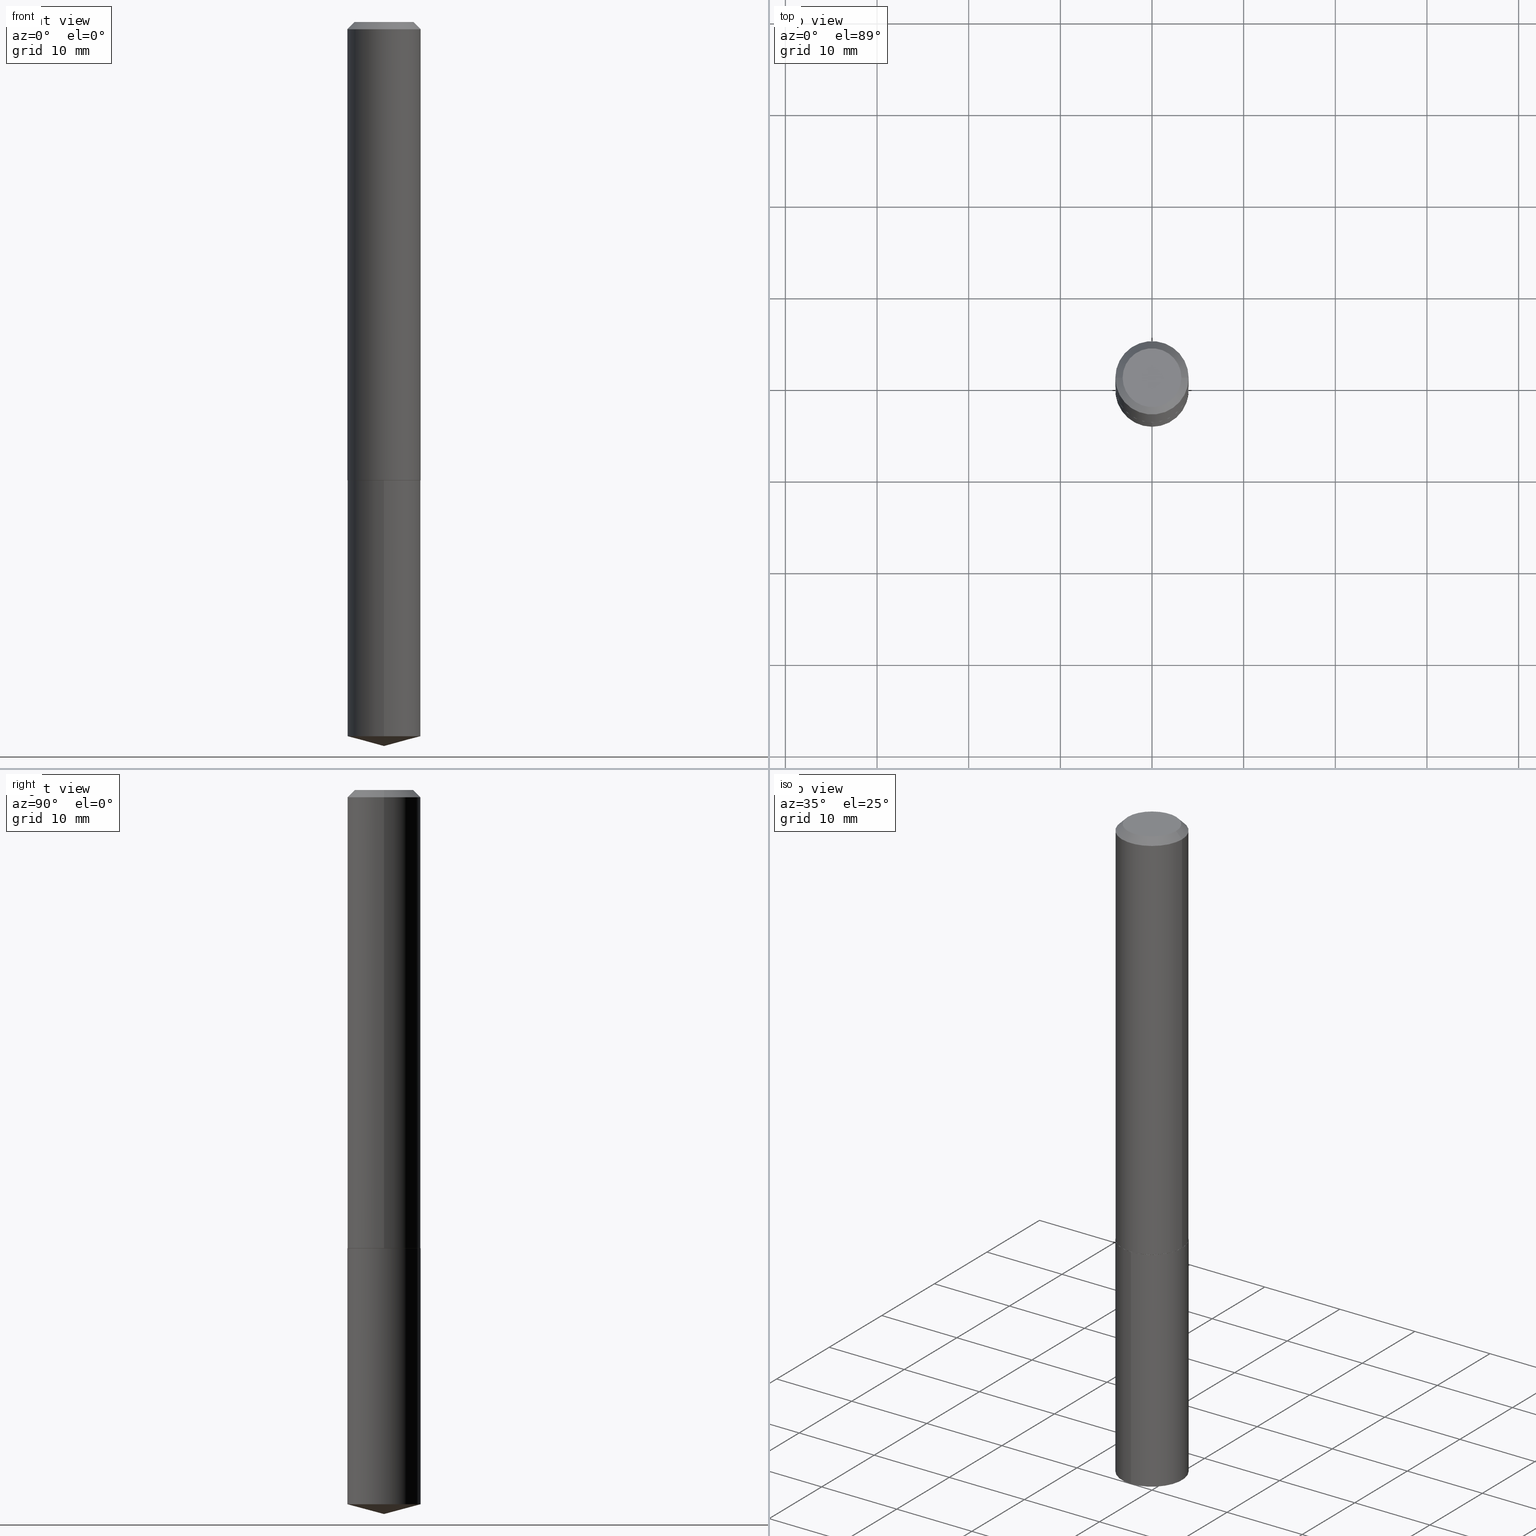
[diagram: canonical four-view strip — front | top / right | iso, engineering-drawing reading convention]
A machine part, canonical four-view strip (front | top / right | iso — engineering-drawing reading convention). The complete STEP part file that produces these views, byte-faithful:
ISO-10303-21;
HEADER;
FILE_DESCRIPTION (( 'STEP AP203' ),
    '1' );
FILE_NAME ('69015.STEP',
    '2024-04-23T14:20:31',
    ( '' ),
    ( '' ),
    'SwSTEP 2.0',
    'SolidWorks 2023',
    '' );
FILE_SCHEMA (( 'CONFIG_CONTROL_DESIGN' ));
ENDSEC;

DATA;
#1 = DIRECTION ( 'NONE',  ( -2.438088387897960049E-29, 3.491481338843145188E-15, 1.000000000000000000 ) ) ;
#2 = DIRECTION ( 'NONE',  ( -2.445414923348069265E-29, 3.491558502132646561E-15, 1.000000000000000000 ) ) ;
#3 = AXIS2_PLACEMENT_3D ( 'NONE', #268, #240, #80 ) ;
#4 =( GEOMETRIC_REPRESENTATION_CONTEXT ( 3 ) GLOBAL_UNCERTAINTY_ASSIGNED_CONTEXT ( ( #249 ) ) GLOBAL_UNIT_ASSIGNED_CONTEXT ( ( #203, #369, #107 ) ) REPRESENTATION_CONTEXT ( 'NONE', 'WORKASPACE' ) );
#5 = PRODUCT_DEFINITION_FORMATION_WITH_SPECIFIED_SOURCE ( 'ANY', '', #269, .NOT_KNOWN. ) ;
#6 = ORIENTED_EDGE ( 'NONE', *, *, #106, .T. ) ;
#7 = LINE ( 'NONE', #346, #135 ) ;
#8 = PERSON ( 'UNSPECIFIED', 'UNSPECIFIED', 'UNSPECIFIED', ('UNSPECIFIED'), ('UNSPECIFIED'), ('UNSPECIFIED') ) ;
#9 = EDGE_LOOP ( 'NONE', ( #175, #294, #291 ) ) ;
#10 = ADVANCED_FACE ( 'NONE', ( #270 ), #227, .T. ) ;
#11 = VECTOR ( 'NONE', #104, 39.37007874015748143 ) ;
#12 = CYLINDRICAL_SURFACE ( 'NONE', #3, 0.1575000000000000844 ) ;
#13 = DIRECTION ( 'NONE',  ( -2.445414923348069265E-29, 3.491558502132646561E-15, 1.000000000000000000 ) ) ;
#14 = ADVANCED_FACE ( 'NONE', ( #87 ), #12, .T. ) ;
#15 = DATE_AND_TIME ( #278, #150 ) ;
#16 = CARTESIAN_POINT ( 'NONE',  ( -0.1575000000000002232, -5.752130466021151811E-15, -1.968000000000000194 ) ) ;
#17 = EDGE_LOOP ( 'NONE', ( #97, #226, #23, #141 ) ) ;
#18 = AXIS2_PLACEMENT_3D ( 'NONE', #255, #65, #151 ) ;
#19 = PERSON_AND_ORGANIZATION_ROLE ( 'design_owner' ) ;
#20 = DIRECTION ( 'NONE',  ( 1.000000000000000000, -6.982962677686265133E-15, 0.000000000000000000 ) ) ;
#21 = PERSON_AND_ORGANIZATION ( #8, #116 ) ;
#22 = DIRECTION ( 'NONE',  ( -6.982962677686264344E-15, -1.000000000000000000, 3.469013325287953293E-15 ) ) ;
#23 = ORIENTED_EDGE ( 'NONE', *, *, #229, .T. ) ;
#24 = DATE_AND_TIME ( #176, #46 ) ;
#25 = CARTESIAN_POINT ( 'NONE',  ( 4.812682610572349594E-29, -6.871235274843310993E-15, -1.968000000000000194 ) ) ;
#26 = ORIENTED_EDGE ( 'NONE', *, *, #340, .T. ) ;
#27 = CIRCLE ( 'NONE', #342, 0.1575000000000000011 ) ;
#28 = AXIS2_PLACEMENT_3D ( 'NONE', #57, #177, #138 ) ;
#29 = DIRECTION ( 'NONE',  ( -2.445468806185136597E-29, 3.491481338843145583E-15, 1.000000000000000000 ) ) ;
#30 = ORIENTED_EDGE ( 'NONE', *, *, #271, .T. ) ;
#31 = LOCAL_TIME ( 10, 20, 31.00000000000000000, #212 ) ;
#32 = DIRECTION ( 'NONE',  ( -2.445468806185136597E-29, 3.491481338843145583E-15, 1.000000000000000000 ) ) ;
#33 = DESIGN_CONTEXT ( 'detailed design', #169, 'design' ) ;
#34 = EDGE_CURVE ( 'NONE', #49, #283, #7, .T. ) ;
#35 = EDGE_LOOP ( 'NONE', ( #313, #30, #68, #170 ) ) ;
#36 = CARTESIAN_POINT ( 'NONE',  ( 4.812682610572349594E-29, -6.871235274843310993E-15, -1.968000000000000194 ) ) ;
#37 = AXIS2_PLACEMENT_3D ( 'NONE', #205, #13, #351 ) ;
#38 = VECTOR ( 'NONE', #67, 39.37007874015748854 ) ;
#39 = EDGE_LOOP ( 'NONE', ( #275, #167, #42, #162 ) ) ;
#40 = EDGE_LOOP ( 'NONE', ( #111, #130 ) ) ;
#41 = EDGE_CURVE ( 'NONE', #174, #339, #202, .T. ) ;
#42 = ORIENTED_EDGE ( 'NONE', *, *, #178, .T. ) ;
#43 = ORIENTED_EDGE ( 'NONE', *, *, #112, .T. ) ;
#44 = VECTOR ( 'NONE', #389, 39.37007874015748854 ) ;
#45 = DIRECTION ( 'NONE',  ( -2.445414923348069265E-29, 3.491558502132646561E-15, 1.000000000000000000 ) ) ;
#46 = LOCAL_TIME ( 10, 20, 31.00000000000000000, #382 ) ;
#47 = DIRECTION ( 'NONE',  ( -2.445414923348069265E-29, 3.491558502132646561E-15, 1.000000000000000000 ) ) ;
#48 = EDGE_CURVE ( 'NONE', #260, #372, #367, .T. ) ;
#49 = VERTEX_POINT ( 'NONE', #320 ) ;
#50 = VERTEX_POINT ( 'NONE', #376 ) ;
#51 = DIRECTION ( 'NONE',  ( -6.982962677686264344E-15, -1.000000000000000000, 3.469013325287953293E-15 ) ) ;
#52 = AXIS2_PLACEMENT_3D ( 'NONE', #62, #245, #123 ) ;
#53 = DIRECTION ( 'NONE',  ( 2.445468806185136597E-29, -3.491481338843145583E-15, -1.000000000000000000 ) ) ;
#54 = CC_DESIGN_APPROVAL ( #290, ( #388 ) ) ;
#55 = EDGE_CURVE ( 'NONE', #362, #174, #27, .T. ) ;
#56 = PERSON_AND_ORGANIZATION_ROLE ( 'classification_officer' ) ;
#57 = CARTESIAN_POINT ( 'NONE',  ( 4.813905344975441835E-29, -6.872981015512731707E-15, -1.968500000000000139 ) ) ;
#58 = PERSON_AND_ORGANIZATION ( #8, #116 ) ;
#59 = CARTESIAN_POINT ( 'NONE',  ( 4.813905344975441835E-29, -6.872981015512731707E-15, -1.968500000000000139 ) ) ;
#60 = CLOSED_SHELL ( 'NONE', ( #237, #14, #336, #314, #121, #280, #93, #76 ) ) ;
#61 = AXIS2_PLACEMENT_3D ( 'NONE', #59, #1, #197 ) ;
#62 = CARTESIAN_POINT ( 'NONE',  ( 0.000000000000000000, 0.000000000000000000, 0.000000000000000000 ) ) ;
#63 = LINE ( 'NONE', #361, #243 ) ;
#64 = DATE_AND_TIME ( #119, #254 ) ;
#65 = DIRECTION ( 'NONE',  ( -2.445468806185136597E-29, 3.491481338843145583E-15, 1.000000000000000000 ) ) ;
#66 = PERSON_AND_ORGANIZATION ( #8, #116 ) ;
#67 = DIRECTION ( 'NONE',  ( 6.863315791527704515E-15, 0.9659258262890710878, 0.2588190451025098038 ) ) ;
#68 = ORIENTED_EDGE ( 'NONE', *, *, #48, .T. ) ;
#69 = CIRCLE ( 'NONE', #199, 0.1575000000000000011 ) ;
#70 = AXIS2_PLACEMENT_3D ( 'NONE', #385, #185, #305 ) ;
#71 = DIRECTION ( 'NONE',  ( 1.000000000000000000, -6.982962677686267499E-15, 4.876176775795936353E-29 ) ) ;
#72 = CC_DESIGN_SECURITY_CLASSIFICATION ( #100, ( #5 ) ) ;
#73 = APPROVAL ( #214, 'UNSPECIFIED' ) ;
#74 = EDGE_LOOP ( 'NONE', ( #247, #365, #103, #192 ) ) ;
#75 = ORIENTED_EDGE ( 'NONE', *, *, #145, .F. ) ;
#76 = ADVANCED_FACE ( 'NONE', ( #241 ), #85, .F. ) ;
#77 = DIRECTION ( 'NONE',  ( 1.000000000000000000, -6.982962677686265133E-15, 0.000000000000000000 ) ) ;
#78 = CONICAL_SURFACE ( 'NONE', #328, 0.1575000000000000011, 0.7853981633974449483 ) ;
#79 = EDGE_CURVE ( 'NONE', #283, #286, #349, .T. ) ;
#80 = DIRECTION ( 'NONE',  ( 1.000000000000000000, -6.982962677686267499E-15, 4.876176775795936353E-29 ) ) ;
#81 = ORIENTED_EDGE ( 'NONE', *, *, #106, .F. ) ;
#82 = DIRECTION ( 'NONE',  ( -6.982962677686264344E-15, -1.000000000000000000, 3.469013325287953293E-15 ) ) ;
#83 = CARTESIAN_POINT ( 'NONE',  ( -1.099816621735538768E-15, -0.1575000000000068567, -1.968499999999999472 ) ) ;
#84 = DIRECTION ( 'NONE',  ( 1.000000000000000000, -6.982962677686265133E-15, 0.000000000000000000 ) ) ;
#85 = PLANE ( 'NONE',  #306 ) ;
#86 = CC_DESIGN_DATE_AND_TIME_ASSIGNMENT ( #24, #217, ( #388 ) ) ;
#87 = FACE_OUTER_BOUND ( 'NONE', #285, .T. ) ;
#88 = APPROVAL_STATUS ( 'not_yet_approved' ) ;
#89 = CARTESIAN_POINT ( 'NONE',  ( 7.605943491515408972E-29, -1.085914146146219364E-14, -3.110199999999999854 ) ) ;
#90 = ORIENTED_EDGE ( 'NONE', *, *, #340, .F. ) ;
#91 = PERSON_AND_ORGANIZATION ( #8, #116 ) ;
#92 = DIRECTION ( 'NONE',  ( 0.7071067811865451302, -7.319954787623248157E-15, -0.7071067811865499042 ) ) ;
#93 = ADVANCED_FACE ( 'NONE', ( #207 ), #78, .T. ) ;
#94 = LINE ( 'NONE', #386, #234 ) ;
#95 = APPROVAL_ROLE ( '' ) ;
#96 = DIRECTION ( 'NONE',  ( 2.445468806185136597E-29, -3.491481338843145583E-15, -1.000000000000000000 ) ) ;
#97 = ORIENTED_EDGE ( 'NONE', *, *, #34, .F. ) ;
#98 = CARTESIAN_POINT ( 'NONE',  ( 0.1575000000000000011, -1.189637226487865274E-15, -0.03125000000000021511 ) ) ;
#99 = VECTOR ( 'NONE', #92, 39.37007874015748143 ) ;
#100 = SECURITY_CLASSIFICATION ( '', '', #257 ) ;
#101 = EDGE_LOOP ( 'NONE', ( #195, #390, #26, #308 ) ) ;
#102 = EDGE_CURVE ( 'NONE', #144, #339, #69, .T. ) ;
#103 = ORIENTED_EDGE ( 'NONE', *, *, #41, .T. ) ;
#104 = DIRECTION ( 'NONE',  ( -2.445414923348069265E-29, 3.491558502132646561E-15, 1.000000000000000000 ) ) ;
#105 = ORIENTED_EDGE ( 'NONE', *, *, #204, .F. ) ;
#106 = EDGE_CURVE ( 'NONE', #134, #49, #132, .T. ) ;
#107 =( NAMED_UNIT ( * ) SI_UNIT ( $, .STERADIAN. ) SOLID_ANGLE_UNIT ( ) );
#108 = CARTESIAN_POINT ( 'NONE',  ( 7.642090019328604414E-31, -1.091087918388490513E-16, -0.03125000000000021511 ) ) ;
#109 = AXIS2_PLACEMENT_3D ( 'NONE', #284, #2, #194 ) ;
#110 = VERTEX_POINT ( 'NONE', #323 ) ;
#111 = ORIENTED_EDGE ( 'NONE', *, *, #266, .T. ) ;
#112 = EDGE_CURVE ( 'NONE', #339, #144, #222, .T. ) ;
#113 =( LENGTH_UNIT ( ) NAMED_UNIT ( * ) SI_UNIT ( $, .METRE. ) );
#114 = DIRECTION ( 'NONE',  ( -1.000000000000000000, 6.982962677686265922E-15, -4.876176775795935793E-29 ) ) ;
#115 = DIRECTION ( 'NONE',  ( -2.445414923348069265E-29, 3.491558502132646561E-15, 1.000000000000000000 ) ) ;
#116 = ORGANIZATION ( 'UNSPECIFIED', 'UNSPECIFIED', '' ) ;
#117 = APPROVAL_DATE_TIME ( #15, #73 ) ;
#118 = DIRECTION ( 'NONE',  ( -2.445468806185136597E-29, 3.491481338843145583E-15, 1.000000000000000000 ) ) ;
#119 = CALENDAR_DATE ( 2024, 23, 4 ) ;
#120 = DIRECTION ( 'NONE',  ( -2.445414923348069265E-29, 3.491558502132646561E-15, 1.000000000000000000 ) ) ;
#121 = ADVANCED_FACE ( 'NONE', ( #264 ), #371, .T. ) ;
#122 = MANIFOLD_SOLID_BREP ( 'Body-Move/Copy2[2]', #60 ) ;
#123 = DIRECTION ( 'NONE',  ( 1.000000000000000000, 0.000000000000000000, 0.000000000000000000 ) ) ;
#124 = CARTESIAN_POINT ( 'NONE',  ( 1.119104808822232742E-15, 0.1574999999999931177, -1.968500000000000583 ) ) ;
#125 = COORDINATED_UNIVERSAL_TIME_OFFSET ( 5, 0, .BEHIND. ) ;
#126 = CARTESIAN_POINT ( 'NONE',  ( 7.605729494597165206E-29, -1.085944525333295729E-14, -3.110199999999999854 ) ) ;
#127 = ORIENTED_EDGE ( 'NONE', *, *, #380, .F. ) ;
#128 = ADVANCED_FACE ( 'NONE', ( #317 ), #180, .F. ) ;
#129 = DIRECTION ( 'NONE',  ( -2.445468806185136597E-29, 3.491481338843145583E-15, 1.000000000000000000 ) ) ;
#130 = ORIENTED_EDGE ( 'NONE', *, *, #302, .T. ) ;
#131 = CLOSED_SHELL ( 'NONE', ( #198, #326, #10, #211, #128 ) ) ;
#132 = CIRCLE ( 'NONE', #377, 0.1570000000000002782 ) ;
#133 = PRODUCT_RELATED_PRODUCT_CATEGORY ( 'detail', '', ( #269 ) ) ;
#134 = VERTEX_POINT ( 'NONE', #190 ) ;
#135 = VECTOR ( 'NONE', #348, 39.37007874015748143 ) ;
#136 = VECTOR ( 'NONE', #201, 39.37007874015748143 ) ;
#137 = CC_DESIGN_PERSON_AND_ORGANIZATION_ASSIGNMENT ( #154, #329, ( #5 ) ) ;
#138 = DIRECTION ( 'NONE',  ( -6.982962677686264344E-15, -1.000000000000000000, 3.469013325287953293E-15 ) ) ;
#139 = CARTESIAN_POINT ( 'NONE',  ( 1.119104808822232742E-15, 0.1574999999999893430, -3.067998002192100060 ) ) ;
#140 = DIRECTION ( 'NONE',  ( -2.445414923348069265E-29, 3.491558502132646561E-15, 1.000000000000000000 ) ) ;
#141 = ORIENTED_EDGE ( 'NONE', *, *, #79, .F. ) ;
#142 = CIRCLE ( 'NONE', #228, 0.1575000000000000011 ) ;
#143 = CARTESIAN_POINT ( 'NONE',  ( -2.994835545909349753E-48, 4.275831445897006817E-34, 1.224646799147362773E-19 ) ) ;
#144 = VERTEX_POINT ( 'NONE', #124 ) ;
#145 = EDGE_CURVE ( 'NONE', #110, #174, #332, .T. ) ;
#146 = CARTESIAN_POINT ( 'NONE',  ( 4.812682610572349594E-29, -6.871235274843310993E-15, -1.968000000000000194 ) ) ;
#147 = DIRECTION ( 'NONE',  ( 1.000000000000000000, -6.982962677686267499E-15, 4.876173807581833048E-29 ) ) ;
#148 = ORIENTED_EDGE ( 'NONE', *, *, #380, .T. ) ;
#149 = DATE_AND_TIME ( #248, #31 ) ;
#150 = LOCAL_TIME ( 10, 20, 31.00000000000000000, #125 ) ;
#151 = DIRECTION ( 'NONE',  ( 1.000000000000000000, -6.982962677686264344E-15, 0.000000000000000000 ) ) ;
#152 = DATE_AND_TIME ( #378, #168 ) ;
#153 = CARTESIAN_POINT ( 'NONE',  ( 0.1575000000000000011, -1.208925413574435989E-15, -0.03125000000000021511 ) ) ;
#154 = PERSON_AND_ORGANIZATION ( #8, #116 ) ;
#155 = CARTESIAN_POINT ( 'NONE',  ( 4.813905344975441835E-29, -6.872981015512731707E-15, -1.968500000000000139 ) ) ;
#156 = VECTOR ( 'NONE', #47, 39.37007874015748143 ) ;
#157 = CC_DESIGN_PERSON_AND_ORGANIZATION_ASSIGNMENT ( #186, #56, ( #100 ) ) ;
#158 = CONICAL_SURFACE ( 'NONE', #267, 0.1575000000000000011, 0.7853981633974449483 ) ;
#159 = DIRECTION ( 'NONE',  ( 0.7071067811865957564, -2.468850131082761932E-15, 0.7071067811864992780 ) ) ;
#160 = ORIENTED_EDGE ( 'NONE', *, *, #34, .T. ) ;
#161 = AXIS2_PLACEMENT_3D ( 'NONE', #155, #120, #22 ) ;
#162 = ORIENTED_EDGE ( 'NONE', *, *, #360, .T. ) ;
#163 = EDGE_CURVE ( 'NONE', #110, #362, #218, .T. ) ;
#164 = VERTEX_POINT ( 'NONE', #304 ) ;
#165 = DIRECTION ( 'NONE',  ( 1.000000000000000000, -6.982962677686265922E-15, 0.000000000000000000 ) ) ;
#166 = APPROVAL_PERSON_ORGANIZATION ( #357, #290, #95 ) ;
#167 = ORIENTED_EDGE ( 'NONE', *, *, #266, .F. ) ;
#168 = LOCAL_TIME ( 10, 20, 31.00000000000000000, #179 ) ;
#169 = APPLICATION_CONTEXT ( 'configuration controlled 3d designs of mechanical parts and assemblies' ) ;
#170 = ORIENTED_EDGE ( 'NONE', *, *, #178, .F. ) ;
#171 = ORIENTED_EDGE ( 'NONE', *, *, #163, .T. ) ;
#172 = EDGE_LOOP ( 'NONE', ( #43, #289 ) ) ;
#173 = AXIS2_PLACEMENT_3D ( 'NONE', #36, #32, #84 ) ;
#174 = VERTEX_POINT ( 'NONE', #281 ) ;
#175 = ORIENTED_EDGE ( 'NONE', *, *, #163, .F. ) ;
#176 = CALENDAR_DATE ( 2024, 23, 4 ) ;
#177 = DIRECTION ( 'NONE',  ( -2.445414923348069265E-29, 3.491558502132646561E-15, 1.000000000000000000 ) ) ;
#178 = EDGE_CURVE ( 'NONE', #50, #372, #63, .T. ) ;
#179 = COORDINATED_UNIVERSAL_TIME_OFFSET ( 5, 0, .BEHIND. ) ;
#180 = PLANE ( 'NONE',  #70 ) ;
#181 = CIRCLE ( 'NONE', #259, 0.1575000000000002232 ) ;
#182 = ADVANCED_BREP_SHAPE_REPRESENTATION ( '69015', ( #262, #122, #52 ), #4 ) ;
#183 = CYLINDRICAL_SURFACE ( 'NONE', #216, 0.1575000000000000011 ) ;
#184 = APPROVAL_ROLE ( '' ) ;
#185 = DIRECTION ( 'NONE',  ( 2.445414923348068985E-29, -3.491558502132646561E-15, -1.000000000000000000 ) ) ;
#186 = PERSON_AND_ORGANIZATION ( #8, #116 ) ;
#187 = DIRECTION ( 'NONE',  ( -2.445414923348069265E-29, 3.491558502132646561E-15, 1.000000000000000000 ) ) ;
#188 = AXIS2_PLACEMENT_3D ( 'NONE', #146, #265, #322 ) ;
#189 = CONICAL_SURFACE ( 'NONE', #109, 146.9311341562595885, 1.308996938995754977 ) ;
#190 = CARTESIAN_POINT ( 'NONE',  ( 0.1570000000000002782, -7.969306155909476969E-15, -1.968500000000000139 ) ) ;
#191 = APPLICATION_CONTEXT ( 'configuration controlled 3d designs of mechanical parts and assemblies' ) ;
#192 = ORIENTED_EDGE ( 'NONE', *, *, #102, .F. ) ;
#193 = EDGE_CURVE ( 'NONE', #286, #283, #181, .T. ) ;
#194 = DIRECTION ( 'NONE',  ( -6.982962677686265922E-15, -1.000000000000000000, 3.510303681827531176E-15 ) ) ;
#195 = ORIENTED_EDGE ( 'NONE', *, *, #253, .F. ) ;
#196 = AXIS2_PLACEMENT_3D ( 'NONE', #215, #221, #71 ) ;
#197 = DIRECTION ( 'NONE',  ( 1.000000000000000000, -6.982962677686265922E-15, 4.876176775795935793E-29 ) ) ;
#198 = ADVANCED_FACE ( 'NONE', ( #325 ), #383, .T. ) ;
#199 = AXIS2_PLACEMENT_3D ( 'NONE', #344, #115, #315 ) ;
#200 = CARTESIAN_POINT ( 'NONE',  ( 7.502634167727390429E-29, -1.071194261314441830E-14, -3.067998002192099616 ) ) ;
#201 = DIRECTION ( 'NONE',  ( -2.445468806185136877E-29, 3.491481338843145188E-15, 1.000000000000000000 ) ) ;
#202 = LINE ( 'NONE', #83, #156 ) ;
#203 =( CONVERSION_BASED_UNIT ( 'INCH', #316 ) LENGTH_UNIT ( ) NAMED_UNIT ( #252 ) );
#204 = EDGE_CURVE ( 'NONE', #49, #134, #261, .T. ) ;
#205 = CARTESIAN_POINT ( 'NONE',  ( -8.867034252160772409E-28, 1.266036397974310327E-13, 36.25987874015748247 ) ) ;
#206 = AXIS2_PLACEMENT_3D ( 'NONE', #108, #272, #296 ) ;
#207 = FACE_OUTER_BOUND ( 'NONE', #39, .T. ) ;
#208 = CC_DESIGN_APPROVAL ( #309, ( #5 ) ) ;
#209 = APPLICATION_PROTOCOL_DEFINITION ( 'international standard', 'config_control_design', 1994, #169 ) ;
#210 = DIRECTION ( 'NONE',  ( 1.000000000000000000, -6.982962677686264344E-15, 0.000000000000000000 ) ) ;
#211 = ADVANCED_FACE ( 'NONE', ( #299 ), #183, .T. ) ;
#212 = COORDINATED_UNIVERSAL_TIME_OFFSET ( 5, 0, .BEHIND. ) ;
#213 = PLANE ( 'NONE',  #61 ) ;
#214 = APPROVAL_STATUS ( 'not_yet_approved' ) ;
#215 = CARTESIAN_POINT ( 'NONE',  ( 0.000000000000000000, 0.000000000000000000, 0.000000000000000000 ) ) ;
#216 = AXIS2_PLACEMENT_3D ( 'NONE', #258, #187, #277 ) ;
#217 = DATE_TIME_ROLE ( 'creation_date' ) ;
#218 = LINE ( 'NONE', #89, #38 ) ;
#219 = APPROVAL_DATE_TIME ( #64, #290 ) ;
#220 = CYLINDRICAL_SURFACE ( 'NONE', #196, 0.1575000000000000844 ) ;
#221 = DIRECTION ( 'NONE',  ( -2.445468806185136597E-29, 3.491481338843145583E-15, 1.000000000000000000 ) ) ;
#222 = CIRCLE ( 'NONE', #28, 0.1575000000000000011 ) ;
#223 = CC_DESIGN_DATE_AND_TIME_ASSIGNMENT ( #149, #355, ( #100 ) ) ;
#224 = EDGE_LOOP ( 'NONE', ( #6, #160, #381, #256 ) ) ;
#225 = EDGE_LOOP ( 'NONE', ( #148, #334, #335, #232 ) ) ;
#226 = ORIENTED_EDGE ( 'NONE', *, *, #204, .T. ) ;
#227 = CONICAL_SURFACE ( 'NONE', #37, 146.9311341562595885, 1.308996938995754977 ) ;
#228 = AXIS2_PLACEMENT_3D ( 'NONE', #293, #45, #82 ) ;
#229 = EDGE_CURVE ( 'NONE', #134, #286, #251, .T. ) ;
#230 = EDGE_LOOP ( 'NONE', ( #81, #105 ) ) ;
#231 = CARTESIAN_POINT ( 'NONE',  ( -0.1575000000000000011, -2.371067224518920865E-15, -0.03125000000000021511 ) ) ;
#232 = ORIENTED_EDGE ( 'NONE', *, *, #41, .F. ) ;
#233 = CARTESIAN_POINT ( 'NONE',  ( 7.642090019328604414E-31, -1.091087918388490513E-16, -0.03125000000000021511 ) ) ;
#234 = VECTOR ( 'NONE', #358, 39.37007874015748143 ) ;
#235 = CARTESIAN_POINT ( 'NONE',  ( 7.642090019328604414E-31, -1.091087918388490513E-16, -0.03125000000000021511 ) ) ;
#236 = APPROVAL_PERSON_ORGANIZATION ( #91, #73, #184 ) ;
#237 = ADVANCED_FACE ( 'NONE', ( #250 ), #158, .T. ) ;
#238 = CARTESIAN_POINT ( 'NONE',  ( -1.099816621735538768E-15, -0.1575000000000068567, -1.968499999999999472 ) ) ;
#239 = PRODUCT_DEFINITION_SHAPE ( 'NONE', 'NONE',  #388 ) ;
#240 = DIRECTION ( 'NONE',  ( -2.445468806185136597E-29, 3.491481338843145583E-15, 1.000000000000000000 ) ) ;
#241 = FACE_OUTER_BOUND ( 'NONE', #40, .T. ) ;
#242 = DIRECTION ( 'NONE',  ( -2.445468806185136597E-29, 3.491481338843145583E-15, 1.000000000000000000 ) ) ;
#243 = VECTOR ( 'NONE', #333, 39.37007874015748143 ) ;
#244 = CC_DESIGN_APPROVAL ( #73, ( #100 ) ) ;
#245 = DIRECTION ( 'NONE',  ( 0.000000000000000000, 0.000000000000000000, 1.000000000000000000 ) ) ;
#246 = DIRECTION ( 'NONE',  ( 1.000000000000000000, -6.982962677686267499E-15, 4.876173807581833048E-29 ) ) ;
#247 = ORIENTED_EDGE ( 'NONE', *, *, #366, .F. ) ;
#248 = CALENDAR_DATE ( 2024, 23, 4 ) ;
#249 = UNCERTAINTY_MEASURE_WITH_UNIT (LENGTH_MEASURE( 1.000000000000000082E-05 ), #203, 'distance_accuracy_value', 'NONE');
#250 = FACE_OUTER_BOUND ( 'NONE', #35, .T. ) ;
#251 = LINE ( 'NONE', #301, #321 ) ;
#252 = DIMENSIONAL_EXPONENTS ( 1.000000000000000000, 0.000000000000000000, 0.000000000000000000, 0.000000000000000000, 0.000000000000000000, 0.000000000000000000, 0.000000000000000000 ) ;
#253 = EDGE_CURVE ( 'NONE', #283, #372, #94, .T. ) ;
#254 = LOCAL_TIME ( 10, 20, 31.00000000000000000, #327 ) ;
#255 = CARTESIAN_POINT ( 'NONE',  ( 4.813905344975441835E-29, -6.872981015512731707E-15, -1.968500000000000139 ) ) ;
#256 = ORIENTED_EDGE ( 'NONE', *, *, #229, .F. ) ;
#257 = SECURITY_CLASSIFICATION_LEVEL ( 'unclassified' ) ;
#258 = CARTESIAN_POINT ( 'NONE',  ( 4.813905344975441835E-29, -6.872981015512731707E-15, -1.968500000000000139 ) ) ;
#259 = AXIS2_PLACEMENT_3D ( 'NONE', #25, #29, #20 ) ;
#260 = VERTEX_POINT ( 'NONE', #153 ) ;
#261 = CIRCLE ( 'NONE', #18, 0.1570000000000002782 ) ;
#262 = MANIFOLD_SOLID_BREP ( 'Body-Move/Copy2[1]', #131 ) ;
#263 = CARTESIAN_POINT ( 'NONE',  ( 1.119104808822205527E-15, 0.1574999999999931177, -1.968500000000000583 ) ) ;
#264 = FACE_OUTER_BOUND ( 'NONE', #17, .T. ) ;
#265 = DIRECTION ( 'NONE',  ( -2.445468806185136597E-29, 3.491481338843145583E-15, 1.000000000000000000 ) ) ;
#266 = EDGE_CURVE ( 'NONE', #50, #164, #338, .T. ) ;
#267 = AXIS2_PLACEMENT_3D ( 'NONE', #282, #96, #356 ) ;
#268 = CARTESIAN_POINT ( 'NONE',  ( 0.000000000000000000, 0.000000000000000000, 0.000000000000000000 ) ) ;
#269 = PRODUCT ( '69015', '69015', '', ( #324 ) ) ;
#270 = FACE_OUTER_BOUND ( 'NONE', #9, .T. ) ;
#271 = EDGE_CURVE ( 'NONE', #164, #260, #363, .T. ) ;
#272 = DIRECTION ( 'NONE',  ( -2.445468806185136597E-29, 3.491481338843145583E-15, 1.000000000000000000 ) ) ;
#273 = CARTESIAN_POINT ( 'NONE',  ( 0.1575000000000002232, -7.971051896578899262E-15, -1.968000000000000194 ) ) ;
#274 = AXIS2_PLACEMENT_3D ( 'NONE', #279, #129, #147 ) ;
#275 = ORIENTED_EDGE ( 'NONE', *, *, #271, .F. ) ;
#276 = PERSON_AND_ORGANIZATION_ROLE ( 'creator' ) ;
#277 = DIRECTION ( 'NONE',  ( -6.982962677686264344E-15, -1.000000000000000000, 3.469013325287953293E-15 ) ) ;
#278 = CALENDAR_DATE ( 2024, 23, 4 ) ;
#279 = CARTESIAN_POINT ( 'NONE',  ( -5.989671091818699506E-48, 8.551662891794013634E-34, 2.449293598294725547E-19 ) ) ;
#280 = ADVANCED_FACE ( 'NONE', ( #330 ), #220, .T. ) ;
#281 = CARTESIAN_POINT ( 'NONE',  ( -1.099816621735512341E-15, -0.1575000000000107425, -3.067998002192099172 ) ) ;
#282 = CARTESIAN_POINT ( 'NONE',  ( 7.642090019328604414E-31, -1.091087918388490513E-16, -0.03125000000000021511 ) ) ;
#283 = VERTEX_POINT ( 'NONE', #16 ) ;
#284 = CARTESIAN_POINT ( 'NONE',  ( -8.867034252160772409E-28, 1.266036397974310327E-13, 36.25987874015748247 ) ) ;
#285 = EDGE_LOOP ( 'NONE', ( #347, #287, #292, #90 ) ) ;
#286 = VERTEX_POINT ( 'NONE', #273 ) ;
#287 = ORIENTED_EDGE ( 'NONE', *, *, #253, .T. ) ;
#288 = LINE ( 'NONE', #263, #11 ) ;
#289 = ORIENTED_EDGE ( 'NONE', *, *, #102, .T. ) ;
#290 = APPROVAL ( #303, 'UNSPECIFIED' ) ;
#291 = ORIENTED_EDGE ( 'NONE', *, *, #55, .F. ) ;
#292 = ORIENTED_EDGE ( 'NONE', *, *, #48, .F. ) ;
#293 = CARTESIAN_POINT ( 'NONE',  ( 7.502634167727390429E-29, -1.071194261314441830E-14, -3.067998002192099616 ) ) ;
#294 = ORIENTED_EDGE ( 'NONE', *, *, #145, .T. ) ;
#295 = CC_DESIGN_PERSON_AND_ORGANIZATION_ASSIGNMENT ( #331, #276, ( #388 ) ) ;
#296 = DIRECTION ( 'NONE',  ( 1.000000000000000000, -6.982962677686265922E-15, 0.000000000000000000 ) ) ;
#297 = DIRECTION ( 'NONE',  ( -1.000000000000000000, 6.982962677686265922E-15, 0.000000000000000000 ) ) ;
#298 = APPROVAL_ROLE ( '' ) ;
#299 = FACE_OUTER_BOUND ( 'NONE', #74, .T. ) ;
#300 = APPROVAL_DATE_TIME ( #152, #309 ) ;
#301 = CARTESIAN_POINT ( 'NONE',  ( 0.1575000000000002232, -7.971051896578899262E-15, -1.968000000000000194 ) ) ;
#302 = EDGE_CURVE ( 'NONE', #164, #50, #307, .T. ) ;
#303 = APPROVAL_STATUS ( 'not_yet_approved' ) ;
#304 = CARTESIAN_POINT ( 'NONE',  ( 0.1262499999999999734, -1.027887549353260543E-15, 2.449293598361487908E-19 ) ) ;
#305 = DIRECTION ( 'NONE',  ( 6.982962677686265922E-15, 1.000000000000000000, -3.491558502132646561E-15 ) ) ;
#306 = AXIS2_PLACEMENT_3D ( 'NONE', #143, #374, #114 ) ;
#307 = CIRCLE ( 'NONE', #387, 0.1262499999999999734 ) ;
#308 = ORIENTED_EDGE ( 'NONE', *, *, #360, .F. ) ;
#309 = APPROVAL ( #88, 'UNSPECIFIED' ) ;
#310 = APPROVAL_PERSON_ORGANIZATION ( #66, #309, #298 ) ;
#311 = FACE_OUTER_BOUND ( 'NONE', #318, .T. ) ;
#312 = AXIS2_PLACEMENT_3D ( 'NONE', #233, #345, #165 ) ;
#313 = ORIENTED_EDGE ( 'NONE', *, *, #302, .F. ) ;
#314 = ADVANCED_FACE ( 'NONE', ( #353 ), #213, .F. ) ;
#315 = DIRECTION ( 'NONE',  ( -6.982962677686264344E-15, -1.000000000000000000, 3.469013325287953293E-15 ) ) ;
#316 = LENGTH_MEASURE_WITH_UNIT ( LENGTH_MEASURE( 0.02539999999999999897 ), #113 );
#317 = FACE_OUTER_BOUND ( 'NONE', #172, .T. ) ;
#318 = EDGE_LOOP ( 'NONE', ( #75, #171, #127 ) ) ;
#319 = LINE ( 'NONE', #375, #136 ) ;
#320 = CARTESIAN_POINT ( 'NONE',  ( -0.1570000000000002782, -5.754779693195262224E-15, -1.968500000000000139 ) ) ;
#321 = VECTOR ( 'NONE', #159, 39.37007874015748143 ) ;
#322 = DIRECTION ( 'NONE',  ( 1.000000000000000000, -6.982962677686265133E-15, 0.000000000000000000 ) ) ;
#323 = CARTESIAN_POINT ( 'NONE',  ( 7.605729494597165206E-29, -1.085944525333295729E-14, -3.110199999999999854 ) ) ;
#324 = MECHANICAL_CONTEXT ( 'NONE', #191, 'mechanical' ) ;
#325 = FACE_OUTER_BOUND ( 'NONE', #225, .T. ) ;
#326 = ADVANCED_FACE ( 'NONE', ( #311 ), #189, .T. ) ;
#327 = COORDINATED_UNIVERSAL_TIME_OFFSET ( 5, 0, .BEHIND. ) ;
#328 = AXIS2_PLACEMENT_3D ( 'NONE', #235, #53, #297 ) ;
#329 = PERSON_AND_ORGANIZATION_ROLE ( 'design_supplier' ) ;
#330 = FACE_OUTER_BOUND ( 'NONE', #101, .T. ) ;
#331 = PERSON_AND_ORGANIZATION ( #8, #116 ) ;
#332 = LINE ( 'NONE', #126, #44 ) ;
#333 = DIRECTION ( 'NONE',  ( -0.7071067811865451302, 2.468850131082231817E-15, -0.7071067811865499042 ) ) ;
#334 = ORIENTED_EDGE ( 'NONE', *, *, #366, .T. ) ;
#335 = ORIENTED_EDGE ( 'NONE', *, *, #112, .F. ) ;
#336 = ADVANCED_FACE ( 'NONE', ( #337 ), #364, .T. ) ;
#337 = FACE_OUTER_BOUND ( 'NONE', #224, .T. ) ;
#338 = CIRCLE ( 'NONE', #274, 0.1262499999999999734 ) ;
#339 = VERTEX_POINT ( 'NONE', #238 ) ;
#340 = EDGE_CURVE ( 'NONE', #286, #260, #319, .T. ) ;
#341 = DIRECTION ( 'NONE',  ( -2.445468806185136597E-29, 3.491481338843145583E-15, 1.000000000000000000 ) ) ;
#342 = AXIS2_PLACEMENT_3D ( 'NONE', #200, #140, #51 ) ;
#343 = AXIS2_PLACEMENT_3D ( 'NONE', #368, #341, #77 ) ;
#344 = CARTESIAN_POINT ( 'NONE',  ( 4.813905344975441835E-29, -6.872981015512731707E-15, -1.968500000000000139 ) ) ;
#345 = DIRECTION ( 'NONE',  ( -2.445468806185136597E-29, 3.491481338843145583E-15, 1.000000000000000000 ) ) ;
#346 = CARTESIAN_POINT ( 'NONE',  ( -0.1575000000000002232, -5.752130466021151811E-15, -1.968000000000000194 ) ) ;
#347 = ORIENTED_EDGE ( 'NONE', *, *, #193, .T. ) ;
#348 = DIRECTION ( 'NONE',  ( -0.7071067811865957564, 7.493145998870527710E-15, 0.7071067811864992780 ) ) ;
#349 = CIRCLE ( 'NONE', #188, 0.1575000000000002232 ) ;
#350 = CIRCLE ( 'NONE', #312, 0.1575000000000000011 ) ;
#351 = DIRECTION ( 'NONE',  ( -6.982962677686265922E-15, -1.000000000000000000, 3.510303681827531176E-15 ) ) ;
#352 = PERSON_AND_ORGANIZATION_ROLE ( 'creator' ) ;
#353 = FACE_OUTER_BOUND ( 'NONE', #230, .T. ) ;
#354 = CC_DESIGN_PERSON_AND_ORGANIZATION_ASSIGNMENT ( #21, #352, ( #5 ) ) ;
#355 = DATE_TIME_ROLE ( 'classification_date' ) ;
#356 = DIRECTION ( 'NONE',  ( -1.000000000000000000, 6.982962677686265922E-15, 0.000000000000000000 ) ) ;
#357 = PERSON_AND_ORGANIZATION ( #8, #116 ) ;
#358 = DIRECTION ( 'NONE',  ( -2.445468806185136877E-29, 3.491481338843145188E-15, 1.000000000000000000 ) ) ;
#359 = APPLICATION_PROTOCOL_DEFINITION ( 'international standard', 'config_control_design', 1994, #191 ) ;
#360 = EDGE_CURVE ( 'NONE', #372, #260, #350, .T. ) ;
#361 = CARTESIAN_POINT ( 'NONE',  ( -0.1575000000000000011, 9.907078298967379852E-16, -0.03125000000000021511 ) ) ;
#362 = VERTEX_POINT ( 'NONE', #139 ) ;
#363 = LINE ( 'NONE', #98, #99 ) ;
#364 = CONICAL_SURFACE ( 'NONE', #173, 0.1575000000000002232, 0.7853981633975165577 ) ;
#365 = ORIENTED_EDGE ( 'NONE', *, *, #55, .T. ) ;
#366 = EDGE_CURVE ( 'NONE', #362, #144, #288, .T. ) ;
#367 = CIRCLE ( 'NONE', #206, 0.1575000000000000011 ) ;
#368 = CARTESIAN_POINT ( 'NONE',  ( 4.812682610572349594E-29, -6.871235274843310993E-15, -1.968000000000000194 ) ) ;
#369 =( NAMED_UNIT ( * ) PLANE_ANGLE_UNIT ( ) SI_UNIT ( $, .RADIAN. ) );
#370 = CARTESIAN_POINT ( 'NONE',  ( 4.813905344975441835E-29, -6.872981015512731707E-15, -1.968500000000000139 ) ) ;
#371 = CONICAL_SURFACE ( 'NONE', #343, 0.1575000000000002232, 0.7853981633975165577 ) ;
#372 = VERTEX_POINT ( 'NONE', #231 ) ;
#373 = CC_DESIGN_PERSON_AND_ORGANIZATION_ASSIGNMENT ( #58, #19, ( #269 ) ) ;
#374 = DIRECTION ( 'NONE',  ( 2.438088387897960049E-29, -3.491481338843145188E-15, -1.000000000000000000 ) ) ;
#375 = CARTESIAN_POINT ( 'NONE',  ( 0.1575000000000000844, -1.099816621735587677E-15, 7.679978421878603638E-30 ) ) ;
#376 = CARTESIAN_POINT ( 'NONE',  ( -0.1262499999999999734, 9.361534339773144209E-16, 2.449293598231166007E-19 ) ) ;
#377 = AXIS2_PLACEMENT_3D ( 'NONE', #370, #242, #210 ) ;
#378 = CALENDAR_DATE ( 2024, 23, 4 ) ;
#379 = CARTESIAN_POINT ( 'NONE',  ( -5.989671091818699506E-48, 8.551662891794013634E-34, 2.449293598294725547E-19 ) ) ;
#380 = EDGE_CURVE ( 'NONE', #174, #362, #142, .T. ) ;
#381 = ORIENTED_EDGE ( 'NONE', *, *, #193, .F. ) ;
#382 = COORDINATED_UNIVERSAL_TIME_OFFSET ( 5, 0, .BEHIND. ) ;
#383 = CYLINDRICAL_SURFACE ( 'NONE', #161, 0.1575000000000000011 ) ;
#384 = SHAPE_DEFINITION_REPRESENTATION ( #239, #182 ) ;
#385 = CARTESIAN_POINT ( 'NONE',  ( 4.813905344975441835E-29, -6.872981015512731707E-15, -1.968500000000000139 ) ) ;
#386 = CARTESIAN_POINT ( 'NONE',  ( -0.1575000000000000844, 1.119104808822158392E-15, -7.747322767151481189E-30 ) ) ;
#387 = AXIS2_PLACEMENT_3D ( 'NONE', #379, #118, #246 ) ;
#388 = PRODUCT_DEFINITION ( 'UNKNOWN', '', #5, #33 ) ;
#389 = DIRECTION ( 'NONE',  ( -6.745023994389850177E-15, -0.9659258262890693114, 0.2588190451025165761 ) ) ;
#390 = ORIENTED_EDGE ( 'NONE', *, *, #79, .T. ) ;
ENDSEC;
END-ISO-10303-21;
